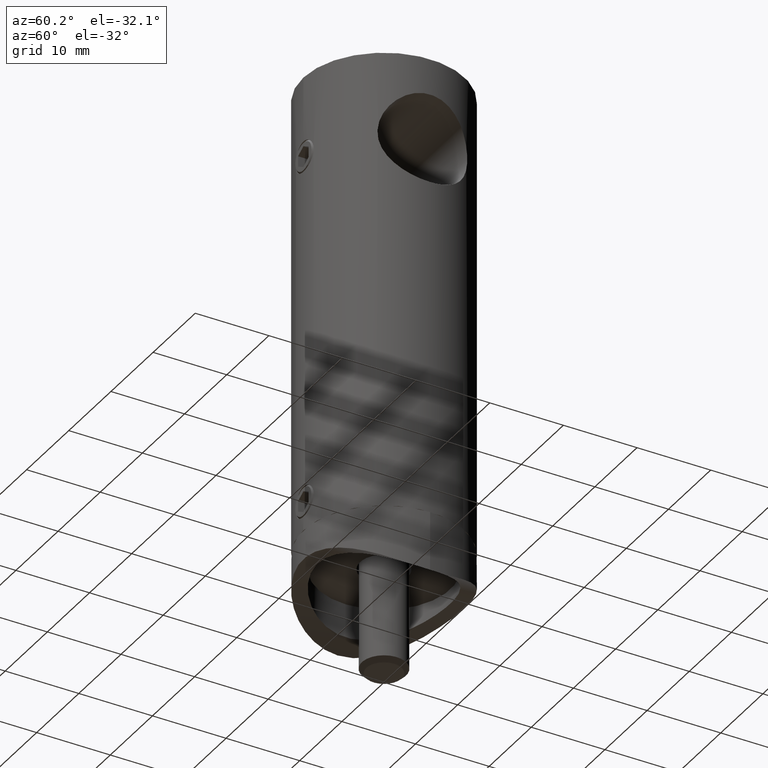
[diagram: clean part render]
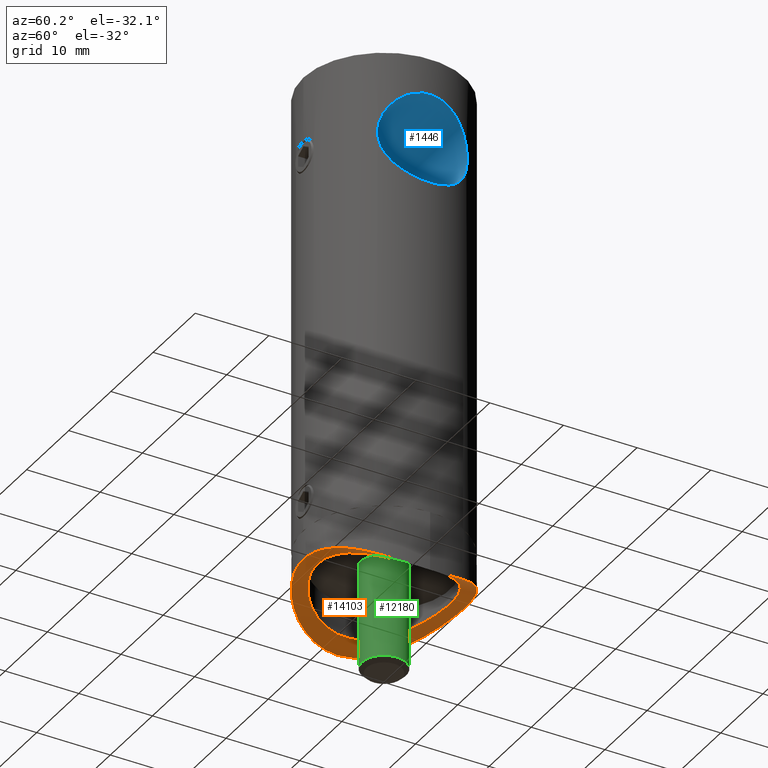
[diagram: same view with three faces highlighted in distinct colors, each labeled with its STEP entity id]
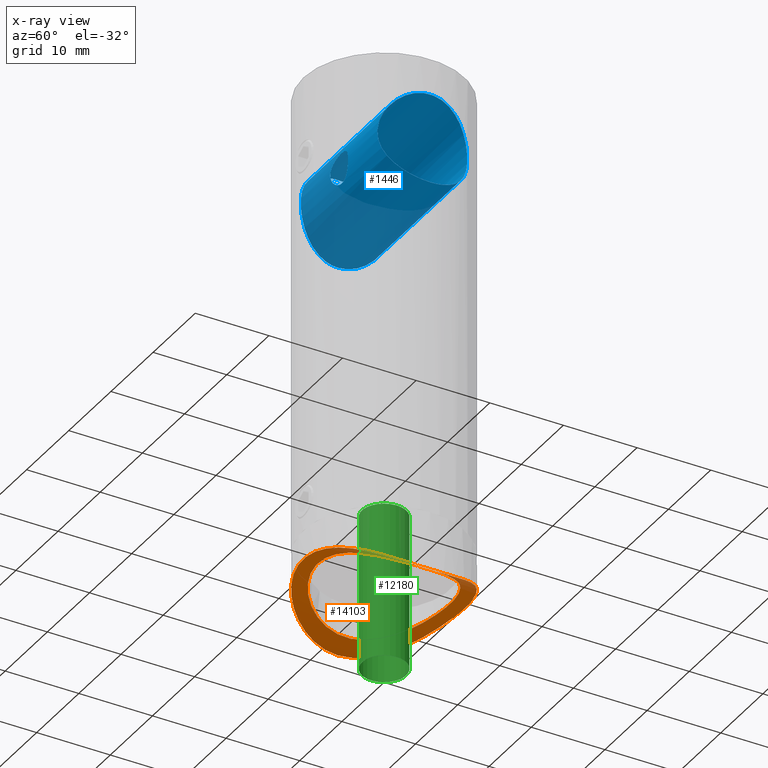
[diagram: x-ray of the same camera — body ghosted, the three highlighted faces saturated]
A machine part, auxiliary view with three faces highlighted in distinct colors.
The next image is the same camera in x-ray (body ghosted, the three faces saturated) — at least one of them is partly hidden behind the body in this view.
Their STEP definitions:

[orange] entity #14103 — the highlighted cylindrical surface (partial cylindrical patch) has radius 16.85 mm, axis along (0, 1, 0).
#8 = EDGE_LOOP ( 'NONE', ( #15482 ) ) ;
#202 = CARTESIAN_POINT ( 'NONE',  ( 6.769756498228755248, -5.937473838987434860, -7.168430931824777197 ) ) ;
#390 = CARTESIAN_POINT ( 'NONE',  ( 2.353999689058933864, 8.707274720112541999, -5.904816326611741495 ) ) ;
#477 = CARTESIAN_POINT ( 'NONE',  ( -8.680771144915242488, -2.394114882269442468, -8.157798624479791982 ) ) ;
#514 = CARTESIAN_POINT ( 'NONE',  ( 0.000000000000000000, 10.94999999999999929, -5.750000000000001776 ) ) ;
#527 = CARTESIAN_POINT ( 'NONE',  ( -5.942505359260777276, -6.765425809986877148, -6.830853520923604982 ) ) ;
#546 = CARTESIAN_POINT ( 'NONE',  ( -5.533633707270922741, 7.121846342639297056, -6.676473259026420415 ) ) ;
#598 = CARTESIAN_POINT ( 'NONE',  ( -0.6254606039707956144, 8.998160360196061802, -5.750982593789538910 ) ) ;
#637 = CARTESIAN_POINT ( 'NONE',  ( -10.95198847609121451, -0.7118171743200889523, -9.794670814496956979 ) ) ;
#792 = CARTESIAN_POINT ( 'NONE',  ( -6.730030820169274008, 8.666679607907711969, -7.139533483458301077 ) ) ;
#807 = CARTESIAN_POINT ( 'NONE',  ( 5.943528670731243579, 6.764565898683116529, -6.831228008002660168 ) ) ;
#843 = CARTESIAN_POINT ( 'NONE',  ( 4.917437567709627366, -9.810064059372233913, -6.468996850800253107 ) ) ;
#890 = CARTESIAN_POINT ( 'NONE',  ( 10.33681730554051192, -3.631079124461086938, -9.292408140327921728 ) ) ;
#938 = CARTESIAN_POINT ( 'NONE',  ( -2.959996584689042809, -10.56786301245745285, -5.996191686004162413 ) ) ;
#1001 = CARTESIAN_POINT ( 'NONE',  ( -9.809582634519843580, -4.878478684646284869, -8.898309364309685776 ) ) ;
#1053 = CARTESIAN_POINT ( 'NONE',  ( -4.645518892374168374, -9.922298315533529589, -6.399398219473660276 ) ) ;
#1481 = CARTESIAN_POINT ( 'NONE',  ( -0.5822777371568756966, -8.986183028970735620, -5.757394420722657280 ) ) ;
#1593 = CARTESIAN_POINT ( 'NONE',  ( 8.703958528421884111, -2.365092918737795369, -8.171463347902022889 ) ) ;
#1664 = CARTESIAN_POINT ( 'NONE',  ( -3.777935387974450610, 8.173918097422765427, -6.176671945371073669 ) ) ;
#1702 = CARTESIAN_POINT ( 'NONE',  ( -4.019086237761178459, -8.074481764611890711, -6.226826285162556651 ) ) ;
#1779 = CARTESIAN_POINT ( 'NONE',  ( -4.807725246531373564, 7.613883850405601450, -6.448448853962938543 ) ) ;
#1812 = CARTESIAN_POINT ( 'NONE',  ( -10.64732733778773444, 2.582474402915730938, -9.539904010321800243 ) ) ;
#1824 = CARTESIAN_POINT ( 'NONE',  ( -4.041245168714110214, 8.046985468913810280, -6.239635013371435335 ) ) ;
#1856 = CARTESIAN_POINT ( 'NONE',  ( -10.87941567533503751, -1.441869195092188471, -9.731585385921057707 ) ) ;
#1900 = AXIS2_PLACEMENT_3D ( 'NONE', #12658, #5317, #6633 ) ;
#1983 = CARTESIAN_POINT ( 'NONE',  ( 8.923624948492774323, 1.208437933319259860, -8.306899802793692444 ) ) ;
#2012 = CARTESIAN_POINT ( 'NONE',  ( -7.998322242046567609, 7.486605205302141464, -7.766753881482975963 ) ) ;
#2058 = CARTESIAN_POINT ( 'NONE',  ( 10.23529659499144273, 3.907426802424408319, -9.213783028792283503 ) ) ;
#2074 = CARTESIAN_POINT ( 'NONE',  ( 8.697453753089316564, 2.390370181689111639, -8.167513435117692566 ) ) ;
#2117 = CARTESIAN_POINT ( 'NONE',  ( 1.452266532563440515, -10.87788132074340020, -5.797143923931495024 ) ) ;
#2168 = CARTESIAN_POINT ( 'NONE',  ( 8.667749000654012548, -6.700333129162086898, -8.148060830391628429 ) ) ;
#2211 = CARTESIAN_POINT ( 'NONE',  ( 4.627639269956550727, 9.930669703494444889, -6.394267290323226050 ) ) ;
#2256 = CYLINDRICAL_SURFACE ( 'NONE', #1900, 16.85000000000000142 ) ;
#2257 = CARTESIAN_POINT ( 'NONE',  ( 10.21191707755098399, -3.967942517896859478, -9.195924782802006092 ) ) ;
#2618 = EDGE_CURVE ( 'NONE', #7478, #7478, #5126, .T. ) ;
#2771 = CARTESIAN_POINT ( 'NONE',  ( 8.072784026240094946, -4.021674449052477840, -7.807415797894997844 ) ) ;
#2791 = CARTESIAN_POINT ( 'NONE',  ( -7.805392656181967759, 4.517992317400706170, -7.662540458132594878 ) ) ;
#2829 = CARTESIAN_POINT ( 'NONE',  ( 6.170767472243694485, -6.557765720885475602, -6.919049366952237712 ) ) ;
#2852 = CARTESIAN_POINT ( 'NONE',  ( 4.012208138427203252, 8.061523673450736283, -6.232474829142356398 ) ) ;
#2889 = CARTESIAN_POINT ( 'NONE',  ( -1.476751091017767026, -8.883008077904746003, -5.812270580325193947 ) ) ;
#2988 = CARTESIAN_POINT ( 'NONE',  ( -10.85176810942076919, 1.509156963096680348, -9.709531812527981032 ) ) ;
#3041 = CARTESIAN_POINT ( 'NONE',  ( -4.934273506818555255, 9.801508284212960831, -6.474206939060009880 ) ) ;
#3056 = CARTESIAN_POINT ( 'NONE',  ( 5.260507770464916355, 7.308321160069399802, -6.590207816444086042 ) ) ;
#3108 = CARTESIAN_POINT ( 'NONE',  ( 7.625567915572271538, 4.789036509286506593, -7.573160285720820895 ) ) ;
#3190 = CARTESIAN_POINT ( 'NONE',  ( -9.798886945069327226, 4.938032297541862015, -8.887830257643761556 ) ) ;
#3205 = CARTESIAN_POINT ( 'NONE',  ( 8.999999999999998224, 0.3035544264433368000, -8.354913127678019080 ) ) ;
#3247 = CARTESIAN_POINT ( 'NONE',  ( -3.649986397884166678, -10.34898535425763377, -6.135751623057464244 ) ) ;
#3293 = CARTESIAN_POINT ( 'NONE',  ( 9.288931940382532559, 5.808586922625468496, -8.539723014647430333 ) ) ;
#3340 = CARTESIAN_POINT ( 'NONE',  ( 10.64640423190052054, -2.586355965133197987, -9.539149381438503994 ) ) ;
#3394 = CARTESIAN_POINT ( 'NONE',  ( -8.713248830424941360, -6.668291993733354239, -8.170402260772506864 ) ) ;
#3446 = CARTESIAN_POINT ( 'NONE',  ( 10.55479468711744673, -2.937828573796699150, -9.464624016628615522 ) ) ;
#3650 = CARTESIAN_POINT ( 'NONE',  ( 0.3733706210002074033, 10.94999999999999929, -5.750000000000003553 ) ) ;
#3898 = VERTEX_POINT ( 'NONE', #514 ) ;
#3927 = FACE_OUTER_BOUND ( 'NONE', #8, .T. ) ;
#3995 = CARTESIAN_POINT ( 'NONE',  ( 4.041567885135372684, -8.062832806003335406, -6.232565028840787669 ) ) ;
#4051 = CARTESIAN_POINT ( 'NONE',  ( 2.383502363788867040, -8.683790020312519786, -5.916926162043927739 ) ) ;
#4097 = CARTESIAN_POINT ( 'NONE',  ( -6.156201835296486458, -6.571452150948912774, -6.913317047625915812 ) ) ;
#4264 = CARTESIAN_POINT ( 'NONE',  ( -8.883474752777638983, 6.411466823441349661, -8.280101745709313121 ) ) ;
#4367 = CARTESIAN_POINT ( 'NONE',  ( -5.556850910864768345, 9.461821083754074380, -6.680177522850429206 ) ) ;
#4420 = CARTESIAN_POINT ( 'NONE',  ( -10.33868571406257253, 3.625698530204107151, -9.293863955035334357 ) ) ;
#4431 = CARTESIAN_POINT ( 'NONE',  ( 8.522281340456125065, 2.951555618486553456, -8.061744009398445598 ) ) ;
#4461 = CARTESIAN_POINT ( 'NONE',  ( 8.266778147592914294, 7.214835360660763364, -7.906726903854046640 ) ) ;
#4472 = CARTESIAN_POINT ( 'NONE',  ( 8.999999999999998224, 4.065758146820641628E-16, -8.354913127678019080 ) ) ;
#4511 = CARTESIAN_POINT ( 'NONE',  ( 10.85146791475362882, -1.511451789695886783, -9.709278500310860593 ) ) ;
#4567 = CARTESIAN_POINT ( 'NONE',  ( 10.87919409213141719, 1.444128645383031317, -9.731389579601888329 ) ) ;
#4614 = CARTESIAN_POINT ( 'NONE',  ( 10.94894190767665876, -0.4014474514221523793, -9.792066017781449361 ) ) ;
#4659 = CARTESIAN_POINT ( 'NONE',  ( -0.7738063085260448171, -10.92896024233015595, -5.763691165558240570 ) ) ;
#4920 = CARTESIAN_POINT ( 'NONE',  ( -8.673617379884035472E-16, 10.94999999999999929, -5.750000000000002665 ) ) ;
#4940 = EDGE_CURVE ( 'NONE', #3898, #3898, #9058, .T. ) ;
#4980 = CARTESIAN_POINT ( 'NONE',  ( 7.136054399886305077, -5.491805371263071223, -7.334363604715455232 ) ) ;
#5030 = CARTESIAN_POINT ( 'NONE',  ( 0.6241749436309375065, -8.998437823462580809, -5.750834395043401770 ) ) ;
#5086 = CARTESIAN_POINT ( 'NONE',  ( 5.276021894448009064, -7.297147494087153241, -6.595311827422430717 ) ) ;
#5126 = B_SPLINE_CURVE_WITH_KNOTS ( 'NONE', 3,
 ( #13549, #11079, #7464, #1593, #5198, #2771, #5144, #7415, #4980, #202, #9823, #2829, #8681, #6412, #5086, #7518, #3995, #6351, #11242, #4051, #11022, #12269, #5030, #14683, #1481, #9869, #2889, #13710, #14951, #11301, #13768, #1702, #5311, #7736, #5254, #527, #4097, #6521, #12491, #6474, #12542, #14892, #7683, #477, #8899, #10091, #7602, #6492, #8861, #12561, #12456, #7818, #13788, #12669, #2791, #11262, #6539, #7759, #546, #1779, #10159, #1824, #1664, #11381, #13678, #12612, #598, #6432, #5424, #11425, #9004, #390, #10058, #11207, #2852, #13987, #7971, #3056, #9062, #807, #11485, #8017, #12727, #3108, #10410, #6791, #10309, #4431, #2074, #9213, #1983, #10362, #3205, #4472 ),
 .UNSPECIFIED., .T., .F.,
 ( 4, 2, 2, 2, 2, 2, 2, 2, 2, 2, 2, 2, 2, 2, 2, 2, 2, 2, 2, 2, 2, 2, 2, 2, 2, 2, 2, 2, 2, 2, 2, 2, 2, 2, 2, 2, 2, 2, 2, 2, 2, 2, 2, 2, 2, 2, 4 ),
 ( 0.000000000000000000, 0.001791929199387567269, 0.003583858398775133670, 0.005375787598162699854, 0.006271752197856484030, 0.007167716797550267339, 0.008063681397244051516, 0.008959645996937833090, 0.01075157519632539971, 0.01164753979601918128, 0.01254350439571296459, 0.01433543359510052774, 0.01523139819479431105, 0.01612736279448809609, 0.01702332739418187940, 0.01791929199387566271, 0.01971122119326322586, 0.02060718579295700570, 0.02150315039265078554, 0.02329507959203834522, 0.02508700879142590143, 0.02598297339111967780, 0.02687893799081345417, 0.02867086719020101038, 0.03046279638958856312, 0.03135876098928234296, 0.03225472558897612280, 0.03404665478836367554, 0.03583858398775122828, 0.03763051318713878796, 0.03852647778683256086, 0.03942244238652634070, 0.04121437158591389344, 0.04300630078530144618, 0.04390226538499522602, 0.04479822998468899892, 0.04659015918407655166, 0.04748612378377033150, 0.04838208838346410440, 0.04927805298315788424, 0.05017401758285166408, 0.05196594678223921682, 0.05286191138193299666, 0.05375787598162676956, 0.05554980518101432924, 0.05644576978070810214, 0.05734173438040188198 ),
 .UNSPECIFIED. ) ;
#5144 = CARTESIAN_POINT ( 'NONE',  ( 7.797088794533238776, -4.532650516029333332, -7.658139167098894085 ) ) ;
#5198 = CARTESIAN_POINT ( 'NONE',  ( 8.526297857816199866, -2.940399998006672622, -8.064091560879914411 ) ) ;
#5254 = CARTESIAN_POINT ( 'NONE',  ( -5.493936980478560272, -7.134494571433201315, -6.669023662124764940 ) ) ;
#5311 = CARTESIAN_POINT ( 'NONE',  ( -4.532702480700876002, -7.797067203172923122, -6.363189922402299636 ) ) ;
#5317 = DIRECTION ( 'NONE',  ( -0.000000000000000000, 1.000000000000000000, -0.000000000000000000 ) ) ;
#5411 = CARTESIAN_POINT ( 'NONE',  ( -8.674436666472141511, 6.691646975888223992, -8.152084883947939176 ) ) ;
#5424 = CARTESIAN_POINT ( 'NONE',  ( 0.5722147814154153744, 8.986879830245939615, -5.757022464014128538 ) ) ;
#5467 = CARTESIAN_POINT ( 'NONE',  ( -7.264775896212412931, 8.222237890532422711, -7.386554381788460688 ) ) ;
#5667 = CARTESIAN_POINT ( 'NONE',  ( -9.474494951377948837, -5.501037280035036225, -8.664499178143945102 ) ) ;
#5721 = CARTESIAN_POINT ( 'NONE',  ( 8.223414625171180603, -7.238769832133513660, -7.890687629840745565 ) ) ;
#5764 = CARTESIAN_POINT ( 'NONE',  ( 10.57043144332096674, 2.880786553959169272, -9.477236992533965676 ) ) ;
#5815 = CARTESIAN_POINT ( 'NONE',  ( 10.79473961177904329, -1.873167627655815792, -9.661478497784386832 ) ) ;
#6351 = CARTESIAN_POINT ( 'NONE',  ( 3.231651342975603747, -8.404898307200046048, -6.060498670644121511 ) ) ;
#6412 = CARTESIAN_POINT ( 'NONE',  ( 5.511031421548649334, -7.121273697717673379, -6.674942018971740332 ) ) ;
#6432 = CARTESIAN_POINT ( 'NONE',  ( 0.2721457111335696122, 9.000858815726555662, -5.749541286885177627 ) ) ;
#6474 = CARTESIAN_POINT ( 'NONE',  ( -7.787708627573256770, -4.548909255757392245, -7.653203134994748247 ) ) ;
#6492 = CARTESIAN_POINT ( 'NONE',  ( -9.002117627807260547, 0.5654481320849293891, -8.356251025532282384 ) ) ;
#6521 = CARTESIAN_POINT ( 'NONE',  ( -6.767025709518395438, -5.961424383751998235, -7.162278814942807159 ) ) ;
#6539 = CARTESIAN_POINT ( 'NONE',  ( -6.789418910662318396, 5.935974566348909853, -7.172137807243879948 ) ) ;
#6595 = ORIENTED_EDGE ( 'NONE', *, *, #2618, .F. ) ;
#6633 = DIRECTION ( 'NONE',  ( 0.000000000000000000, 0.000000000000000000, 1.000000000000000000 ) ) ;
#6791 = CARTESIAN_POINT ( 'NONE',  ( 8.056514729353525084, 4.022235242260659760, -7.800000922084966426 ) ) ;
#6827 = CARTESIAN_POINT ( 'NONE',  ( -5.891917008406099221, -9.236332190205612136, -6.810640064963539686 ) ) ;
#6869 = CARTESIAN_POINT ( 'NONE',  ( 1.488582956514417077, 10.85474548004059869, -5.811770206739696576 ) ) ;
#6919 = CARTESIAN_POINT ( 'NONE',  ( 2.938192695712195768, 10.57404694462563732, -5.992248146107759688 ) ) ;
#6974 = CARTESIAN_POINT ( 'NONE',  ( -1.882258922895466702, -10.79325268188601328, -5.851537863896203895 ) ) ;
#7030 = CARTESIAN_POINT ( 'NONE',  ( 10.66134374622541436, 2.524523209338929597, -9.551355469383734587 ) ) ;
#7415 = CARTESIAN_POINT ( 'NONE',  ( 7.309928328518850549, -5.258310225204644972, -7.417105923545980417 ) ) ;
#7464 = CARTESIAN_POINT ( 'NONE',  ( 8.939234714585197139, -1.201100035928156284, -8.316035329679033694 ) ) ;
#7478 = VERTEX_POINT ( 'NONE', #13862 ) ;
#7518 = CARTESIAN_POINT ( 'NONE',  ( 4.552025852731567568, -7.785764892461914499, -6.368630286860568646 ) ) ;
#7602 = CARTESIAN_POINT ( 'NONE',  ( -8.997763151772488754, -0.6309608859205875220, -8.353499907095295995 ) ) ;
#7683 = CARTESIAN_POINT ( 'NONE',  ( -8.504749320993937545, -2.959191228520102968, -8.053446895277073025 ) ) ;
#7736 = CARTESIAN_POINT ( 'NONE',  ( -5.258496553154992093, -7.309796590042277664, -6.589536630094383618 ) ) ;
#7759 = CARTESIAN_POINT ( 'NONE',  ( -5.977026886871080080, 6.753306804108664352, -6.839597385321875223 ) ) ;
#7818 = CARTESIAN_POINT ( 'NONE',  ( -8.523009683764771083, 2.906197388975949814, -8.064151766958435275 ) ) ;
#7851 = CARTESIAN_POINT ( 'NONE',  ( -10.94894428843266887, 0.4008463375416358998, -9.792068053304609165 ) ) ;
#7908 = CARTESIAN_POINT ( 'NONE',  ( -10.79521210394975306, 1.870333956932258568, -9.661874852655529367 ) ) ;
#7971 = CARTESIAN_POINT ( 'NONE',  ( 4.777935619119118016, 7.632550779483405101, -6.439625035806792575 ) ) ;
#8005 = CARTESIAN_POINT ( 'NONE',  ( -0.7467412420004226892, 10.94999999999999929, -5.750000000000000000 ) ) ;
#8017 = CARTESIAN_POINT ( 'NONE',  ( 6.773231474935248464, 5.954642221051534179, -7.164947323043685756 ) ) ;
#8048 = CARTESIAN_POINT ( 'NONE',  ( -8.274706805201416771, -7.205644945949356561, -7.911238726087584716 ) ) ;
#8099 = CARTESIAN_POINT ( 'NONE',  ( -10.23745742856988628, -3.901712882491353174, -9.215441720334098363 ) ) ;
#8157 = CARTESIAN_POINT ( 'NONE',  ( 5.541342136532975360, -9.471014841782384508, -6.674707243084673891 ) ) ;
#8205 = CARTESIAN_POINT ( 'NONE',  ( 7.279761530226322996, 8.209661520793499534, -7.393522193404444387 ) ) ;
#8253 = CARTESIAN_POINT ( 'NONE',  ( -6.756981862805640837, -8.644869550942319236, -7.151699482660421658 ) ) ;
#8681 = CARTESIAN_POINT ( 'NONE',  ( 5.957807994985246047, -6.751927895200893204, -6.836641762514618748 ) ) ;
#8861 = CARTESIAN_POINT ( 'NONE',  ( -8.942784940732847687, 1.175460298121187019, -8.318270068185633193 ) ) ;
#8899 = CARTESIAN_POINT ( 'NONE',  ( -8.756187516724763142, -2.102059484055850191, -8.203588714871738574 ) ) ;
#9004 = CARTESIAN_POINT ( 'NONE',  ( 1.474042599237737061, 8.883506363623126845, -5.812007519608032524 ) ) ;
#9044 = CARTESIAN_POINT ( 'NONE',  ( -10.55599610924947918, 2.933437960413626033, -9.465593851156450356 ) ) ;
#9058 = B_SPLINE_CURVE_WITH_KNOTS ( 'NONE', 3,
 ( #10345, #8005, #10250, #12652, #11572, #3041, #4367, #792, #5467, #2012, #10395, #5411, #4264, #13878, #3190, #11619, #4420, #9044, #1812, #7908, #2988, #11470, #7851, #637, #1856, #12712, #13921, #15300, #8099, #15448, #1001, #5667, #9301, #3394, #8048, #12917, #8253, #6827, #11737, #10545, #1053, #3247, #938, #6974, #15245, #4659, #14268, #13072, #2117, #15349, #13110, #843, #8157, #9401, #9452, #9347, #5721, #2168, #9251, #10490, #13018, #2257, #890, #3446, #3340, #5815, #4511, #11837, #4614, #14072, #4567, #7030, #5764, #11782, #2058, #14227, #11677, #10645, #3293, #15397, #4461, #8205, #10441, #12968, #11894, #14122, #2211, #14171, #6919, #10597, #6869, #14508, #3650, #4920 ),
 .UNSPECIFIED., .T., .F.,
 ( 4, 2, 2, 2, 2, 2, 2, 2, 2, 2, 2, 2, 2, 2, 2, 2, 2, 2, 2, 2, 2, 2, 2, 2, 2, 2, 2, 2, 2, 2, 2, 2, 2, 2, 2, 2, 2, 2, 2, 2, 2, 2, 2, 2, 2, 2, 4 ),
 ( 0.000000000000000000, 0.002204674916900577816, 0.004409349833801155631, 0.006614024750701735615, 0.008818699667602314732, 0.009921037126052606459, 0.01102337458450289645, 0.01322804950140347297, 0.01433038695985375775, 0.01543272441830404601, 0.01653506187675433253, 0.01763739933520461906, 0.01984207425210519557, 0.02094441171055547862, 0.02204674916900576515, 0.02314908662745604820, 0.02425142408590633472, 0.02645609900280690777, 0.02866077391970747734, 0.02976311137815776733, 0.03086544883660805733, 0.03307012375350862343, 0.03417246121195890995, 0.03527479867040919648, 0.03747947358730976952, 0.03968414850421033563, 0.04188882342111090173, 0.04409349833801147478, 0.04519583579646176130, 0.04629817325491203395, 0.04850284817181260699, 0.04960518563026288658, 0.05070752308871317310, 0.05180986054716345268, 0.05291219800561372533, 0.05511687292251429837, 0.05621921038096458489, 0.05732154783941486448, 0.05842388529786515100, 0.05952622275631542365, 0.06173089767321599669, 0.06393557259011656280, 0.06503791004856684932, 0.06614024750701713584, 0.06834492242391770889, 0.06944725988236800929, 0.07054959734081828193 ),
 .UNSPECIFIED. ) ;
#9062 = CARTESIAN_POINT ( 'NONE',  ( 5.493574878806451345, 7.134810432546720982, -6.668887727269298793 ) ) ;
#9213 = CARTESIAN_POINT ( 'NONE',  ( 8.877634590881918086, 1.509137806476186672, -8.278161024891542041 ) ) ;
#9251 = CARTESIAN_POINT ( 'NONE',  ( 8.877433961888492320, -6.419858381013207271, -8.276346123866254345 ) ) ;
#9301 = CARTESIAN_POINT ( 'NONE',  ( -9.293821020510860009, -5.800730269746900980, -8.542963866343818324 ) ) ;
#9347 = CARTESIAN_POINT ( 'NONE',  ( 7.989808668690983495, -7.495715265412895789, -7.762153942458378530 ) ) ;
#9401 = CARTESIAN_POINT ( 'NONE',  ( 6.717999677049601992, -8.676120973484600540, -7.134234503047154341 ) ) ;
#9452 = CARTESIAN_POINT ( 'NONE',  ( 7.254245891667538082, -8.231620505888173511, -7.381482026767613114 ) ) ;
#9823 = CARTESIAN_POINT ( 'NONE',  ( 6.576742401764640533, -6.150538336385892535, -7.084941400903030484 ) ) ;
#9869 = CARTESIAN_POINT ( 'NONE',  ( -1.181156269983225204, -8.927228162158147740, -5.788775180607092175 ) ) ;
#10058 = CARTESIAN_POINT ( 'NONE',  ( 2.921239271995005993, 8.533463070077417001, -5.995685546142789590 ) ) ;
#10091 = CARTESIAN_POINT ( 'NONE',  ( -8.936562260900338117, -1.223008817333223419, -8.314333553120043518 ) ) ;
#10159 = CARTESIAN_POINT ( 'NONE',  ( -4.555459080950830852, 7.767459701366194125, -6.375296687731400347 ) ) ;
#10250 = CARTESIAN_POINT ( 'NONE',  ( -1.477209388873391482, 10.87444454831140561, -5.799375572329035222 ) ) ;
#10309 = CARTESIAN_POINT ( 'NONE',  ( 8.182656430668172831, 3.758905916802296243, -7.869638485047897980 ) ) ;
#10345 = CARTESIAN_POINT ( 'NONE',  ( -8.673617379884035472E-16, 10.94999999999999929, -5.750000000000002665 ) ) ;
#10362 = CARTESIAN_POINT ( 'NONE',  ( 8.984605093228685391, 0.6068572968801695389, -8.345152866920285462 ) ) ;
#10395 = CARTESIAN_POINT ( 'NONE',  ( -8.231296336865392860, 7.229782247430190267, -7.895107504779629970 ) ) ;
#10410 = CARTESIAN_POINT ( 'NONE',  ( 7.777914304797517886, 4.537604543765378473, -7.651707409948040883 ) ) ;
#10441 = CARTESIAN_POINT ( 'NONE',  ( 6.745065774781788370, 8.654267804473475323, -7.146432902309400426 ) ) ;
#10490 = CARTESIAN_POINT ( 'NONE',  ( 9.461595865578106057, -5.555570645424507070, -8.649577779853206749 ) ) ;
#10545 = CARTESIAN_POINT ( 'NONE',  ( -4.970478836501090569, -9.763346979481307031, -6.496455371433944137 ) ) ;
#10597 = CARTESIAN_POINT ( 'NONE',  ( 1.857826616693877275, 10.79750973782263301, -5.848792439000015442 ) ) ;
#10645 = CARTESIAN_POINT ( 'NONE',  ( 9.470109693118349270, 5.508614592727200332, -8.661510961139544662 ) ) ;
#11022 = CARTESIAN_POINT ( 'NONE',  ( 2.092200281080138335, -8.758507331697291676, -5.877817630384451597 ) ) ;
#11072 = FACE_BOUND ( 'NONE', #14720, .T. ) ;
#11079 = CARTESIAN_POINT ( 'NONE',  ( 8.999999999999996447, -0.6071088528866767087, -8.354913127678017304 ) ) ;
#11207 = CARTESIAN_POINT ( 'NONE',  ( 3.744279541798007482, 8.189553005263974228, -6.168887132802682416 ) ) ;
#11242 = CARTESIAN_POINT ( 'NONE',  ( 2.954257939733777594, -8.506565268108296607, -6.008484209500283946 ) ) ;
#11262 = CARTESIAN_POINT ( 'NONE',  ( -7.160907752727973197, 5.482500273980079442, -7.343091655285289399 ) ) ;
#11301 = CARTESIAN_POINT ( 'NONE',  ( -2.917833501594558676, -8.519084111116166369, -6.002056127726985935 ) ) ;
#11381 = CARTESIAN_POINT ( 'NONE',  ( -2.969016380059754212, 8.516329794651971596, -6.004475227410789984 ) ) ;
#11425 = CARTESIAN_POINT ( 'NONE',  ( 1.174138839021475089, 8.928204569007862190, -5.788256484811090452 ) ) ;
#11470 = CARTESIAN_POINT ( 'NONE',  ( -10.92870214897537373, 0.7758190374603018968, -9.774692575542266226 ) ) ;
#11485 = CARTESIAN_POINT ( 'NONE',  ( 6.159890061767187674, 6.568056148921655790, -6.914751887033814270 ) ) ;
#11572 = CARTESIAN_POINT ( 'NONE',  ( -3.613987059323615192, 10.36126040694993478, -6.127982685190221268 ) ) ;
#11619 = CARTESIAN_POINT ( 'NONE',  ( -10.21412637448893079, 3.962207022534765422, -9.197614260612791526 ) ) ;
#11677 = CARTESIAN_POINT ( 'NONE',  ( 9.806131957240317831, 4.885446588398185241, -8.895831644228916701 ) ) ;
#11737 = CARTESIAN_POINT ( 'NONE',  ( -5.592625241924395141, -9.420782717441381848, -6.701812921854455318 ) ) ;
#11782 = CARTESIAN_POINT ( 'NONE',  ( 10.35761880147759229, 3.571090145977619201, -9.308624502657911748 ) ) ;
#11837 = CARTESIAN_POINT ( 'NONE',  ( 10.92863707406065465, -0.7770032953400665132, -9.774636520123790362 ) ) ;
#11894 = CARTESIAN_POINT ( 'NONE',  ( 5.577491591896114542, 9.429776438195814237, -6.696480188077203799 ) ) ;
#12269 = CARTESIAN_POINT ( 'NONE',  ( 1.216522046379911126, -8.937286215225499930, -5.783718752768100657 ) ) ;
#12456 = CARTESIAN_POINT ( 'NONE',  ( -8.695601738897536848, 2.339698213813251382, -8.166736740360901692 ) ) ;
#12491 = CARTESIAN_POINT ( 'NONE',  ( -7.134608504950917585, -5.517095482785874694, -7.330667870768158068 ) ) ;
#12542 = CARTESIAN_POINT ( 'NONE',  ( -8.063690013734737150, -4.039346743676786033, -7.802458506225568691 ) ) ;
#12561 = CARTESIAN_POINT ( 'NONE',  ( -8.767997700604155398, 2.052070582208249228, -8.210788958126640225 ) ) ;
#12612 = CARTESIAN_POINT ( 'NONE',  ( -1.220418569986014168, 8.937290988820056015, -5.783728545056426640 ) ) ;
#12652 = CARTESIAN_POINT ( 'NONE',  ( -2.908031627076410164, 10.58201511380506687, -5.987159159428712130 ) ) ;
#12658 = CARTESIAN_POINT ( 'NONE',  ( 0.000000000000000000, -10.94999999999999929, -22.60000000000000142 ) ) ;
#12669 = CARTESIAN_POINT ( 'NONE',  ( -8.081130425237390114, 4.005697824238162674, -7.811957311337415000 ) ) ;
#12712 = CARTESIAN_POINT ( 'NONE',  ( -10.66224500808580800, -2.520629770646548362, -9.552093983451188208 ) ) ;
#12727 = CARTESIAN_POINT ( 'NONE',  ( 7.139208689779466432, 5.510746426112778096, -7.332878771086202896 ) ) ;
#12917 = CARTESIAN_POINT ( 'NONE',  ( -7.290265288139783806, -8.200251449051814134, -7.398601626739076842 ) ) ;
#12968 = CARTESIAN_POINT ( 'NONE',  ( 5.877620805515440416, 9.245459131432669508, -6.805298016302697484 ) ) ;
#13018 = CARTESIAN_POINT ( 'NONE',  ( 9.795493327668371109, -4.944904788168211773, -8.885382186297720253 ) ) ;
#13072 = CARTESIAN_POINT ( 'NONE',  ( 0.7197045531815232655, -10.95187688228041623, -5.748780307314288684 ) ) ;
#13110 = CARTESIAN_POINT ( 'NONE',  ( 3.593644627500637956, -10.36842646559952286, -6.123465985740515372 ) ) ;
#13549 = CARTESIAN_POINT ( 'NONE',  ( 8.999999999999998224, 4.065758146820641628E-16, -8.354913127678019080 ) ) ;
#13678 = CARTESIAN_POINT ( 'NONE',  ( -2.403321873601205638, 8.694172512475292436, -5.911667216160062743 ) ) ;
#13710 = CARTESIAN_POINT ( 'NONE',  ( -2.060544425541010138, -8.766001538176631414, -5.873888391995914837 ) ) ;
#13768 = CARTESIAN_POINT ( 'NONE',  ( -3.200048630397410054, -8.417081813282706548, -6.054304738579498135 ) ) ;
#13788 = CARTESIAN_POINT ( 'NONE',  ( -8.422361920626256548, 3.186124711963695955, -8.005363534646166457 ) ) ;
#13862 = CARTESIAN_POINT ( 'NONE',  ( 8.999999999999998224, 0.000000000000000000, -8.354913127678020857 ) ) ;
#13878 = CARTESIAN_POINT ( 'NONE',  ( -9.465935197402062684, 5.548035047103799577, -8.652562614426770438 ) ) ;
#13921 = CARTESIAN_POINT ( 'NONE',  ( -10.57160307786288378, -2.876417745079140609, -9.478184856008658343 ) ) ;
#13987 = CARTESIAN_POINT ( 'NONE',  ( 4.528431843985457839, 7.783269436300311206, -6.367717369417863260 ) ) ;
#14072 = CARTESIAN_POINT ( 'NONE',  ( 10.95199305943802948, 0.7129543055115454830, -9.794674733213167173 ) ) ;
#14103 = ADVANCED_FACE ( 'NONE', ( #3927, #11072 ), #2256, .F. ) ;
#14122 = CARTESIAN_POINT ( 'NONE',  ( 4.953560312386002806, 9.771966862591126457, -6.491226145437169137 ) ) ;
#14171 = CARTESIAN_POINT ( 'NONE',  ( 3.629804737391232994, 10.35615765906433872, -6.131232922597432911 ) ) ;
#14227 = CARTESIAN_POINT ( 'NONE',  ( 9.959826338002807589, 4.564114363222476101, -9.007577092198808089 ) ) ;
#14268 = CARTESIAN_POINT ( 'NONE',  ( -0.4018684571910203229, -10.94900781875871942, -5.750644769402242673 ) ) ;
#14508 = CARTESIAN_POINT ( 'NONE',  ( 0.7471485046060175605, 10.93083472416227941, -5.762473224318154230 ) ) ;
#14683 = CARTESIAN_POINT ( 'NONE',  ( -0.2776672623730803702, -9.000737208537469058, -5.749606239696248622 ) ) ;
#14720 = EDGE_LOOP ( 'NONE', ( #6595 ) ) ;
#14892 = CARTESIAN_POINT ( 'NONE',  ( -8.403798506831426707, -3.234350838250581450, -7.994671233382894648 ) ) ;
#14951 = CARTESIAN_POINT ( 'NONE',  ( -2.348742300159042173, -8.693213217374982094, -5.912013220954530190 ) ) ;
#15245 = CARTESIAN_POINT ( 'NONE',  ( -1.513907376176437669, -10.85122263332139347, -5.814048855421538597 ) ) ;
#15300 = CARTESIAN_POINT ( 'NONE',  ( -10.35941957191862350, -3.565809419056972018, -9.310031962344309520 ) ) ;
#15349 = CARTESIAN_POINT ( 'NONE',  ( 2.885990040728032113, -10.58812738847623969, -5.983258084705814106 ) ) ;
#15397 = CARTESIAN_POINT ( 'NONE',  ( 8.706728191599379940, 6.676910866607889794, -8.166429194783976442 ) ) ;
#15448 = CARTESIAN_POINT ( 'NONE',  ( -9.962800948346083985, -4.557575592660432662, -9.009763349846030778 ) ) ;
#15482 = ORIENTED_EDGE ( 'NONE', *, *, #4940, .F. ) ;

[blue] entity #1446 — the highlighted cylindrical surface (bore or boss wall) has radius 6.1 mm, axis along (1, 0, 0).
#66 = CARTESIAN_POINT ( 'NONE',  ( -10.94999999999999751, 0.4121271812347865882, 13.89999999999999680 ) ) ;
#112 = CARTESIAN_POINT ( 'NONE',  ( 9.093159490502698006, 6.100569724278071426, 19.59579318104650980 ) ) ;
#168 = CARTESIAN_POINT ( 'NONE',  ( -10.29763792113849519, 3.739050856306787463, 15.16406318220803051 ) ) ;
#325 = CARTESIAN_POINT ( 'NONE',  ( -10.86057621934825868, -1.410670984356244828, 14.06192453670200493 ) ) ;
#391 = CARTESIAN_POINT ( 'NONE',  ( -10.18074281571860240, -4.042908466687186397, 15.41551523344308450 ) ) ;
#448 = CARTESIAN_POINT ( 'NONE',  ( -10.73147197088350957, -2.184879164022425435, 14.30119630879068282 ) ) ;
#610 = CARTESIAN_POINT ( 'NONE',  ( -1.992042382825121249, -6.063472000028594877, 19.32106783480151080 ) ) ;
#623 = CARTESIAN_POINT ( 'NONE',  ( 0.000000000000000000, -5.727128425310541004, 22.09999999999999432 ) ) ;
#709 = CARTESIAN_POINT ( 'NONE',  ( -0.6809394115330155151, -5.766099166669313547, 21.99128326647104714 ) ) ;
#865 = CARTESIAN_POINT ( 'NONE',  ( -0.6807635874338645587, -5.766090314719155785, 18.00869953836180315 ) ) ;
#918 = CARTESIAN_POINT ( 'NONE',  ( 9.768452395021000711, 4.949254153054865490, 23.57118669077423334 ) ) ;
#969 = CARTESIAN_POINT ( 'NONE',  ( -1.056091728403600660, -5.822627757755659772, 18.17975366945843163 ) ) ;
#978 = CARTESIAN_POINT ( 'NONE',  ( 10.92682766583283360, -0.8158183671098866441, 13.94132388569383352 ) ) ;
#1027 = CARTESIAN_POINT ( 'NONE',  ( 1.281236275656479906, -5.867642891633138902, 21.66944067478866387 ) ) ;
#1037 = CARTESIAN_POINT ( 'NONE',  ( 9.826326586135246899, -4.833712876441484951, 16.27394296238261617 ) ) ;
#1074 = CARTESIAN_POINT ( 'NONE',  ( 0.5468045535745765795, -5.751601860987043402, 22.03221476044510752 ) ) ;
#1078 = CARTESIAN_POINT ( 'NONE',  ( 9.944810887569845548, -4.584998447081173545, 15.97184031352808908 ) ) ;
#1130 = CARTESIAN_POINT ( 'NONE',  ( 10.76670801674820233, -2.004736178113188494, 25.76472609174774320 ) ) ;
#1184 = CARTESIAN_POINT ( 'NONE',  ( 10.92670914720671149, 0.8172887995439637177, 13.94153729450738233 ) ) ;
#1340 = CARTESIAN_POINT ( 'NONE',  ( -10.83868741255074930, 1.607475542562763149, 14.10176821019718574 ) ) ;
#1399 = CARTESIAN_POINT ( 'NONE',  ( 10.18074281571859174, 4.042908466687191726, 15.41551523344308805 ) ) ;
#1446 = ADVANCED_FACE ( 'NONE', ( #4456, #9162, #9705 ), #7872, .F. ) ;
#1449 = CARTESIAN_POINT ( 'NONE',  ( -9.490515665216376462, -5.464875276261936143, 22.73897214734641281 ) ) ;
#1500 = CARTESIAN_POINT ( 'NONE',  ( -9.093931798807561862, -6.099418408269275282, 20.42122344917229171 ) ) ;
#1555 = CARTESIAN_POINT ( 'NONE',  ( -9.827761506231270872, -4.830806165742449920, 23.72984559646042158 ) ) ;
#1584 = DIRECTION ( 'NONE',  ( 0.000000000000000000, 0.000000000000000000, -1.000000000000000000 ) ) ;
#1616 = CARTESIAN_POINT ( 'NONE',  ( -10.29628097381320728, 3.742490332636333239, 24.83299621117545541 ) ) ;
#1665 = CARTESIAN_POINT ( 'NONE',  ( -10.94999999999999396, 1.057097118173366823E-15, 13.89999999999999325 ) ) ;
#1770 = EDGE_LOOP ( 'NONE', ( #14873 ) ) ;
#1832 = CARTESIAN_POINT ( 'NONE',  ( -1.282235101703851576, -5.867854272617278433, 21.66871264924787965 ) ) ;
#1885 = CARTESIAN_POINT ( 'NONE',  ( -0.1399003517322289780, -5.727128425310540116, 22.09999999999998721 ) ) ;
#1930 = EDGE_LOOP ( 'NONE', ( #2316 ) ) ;
#1990 = CARTESIAN_POINT ( 'NONE',  ( -9.486769009248163798E-17, -5.727128425310541004, 22.09999999999999076 ) ) ;
#2032 = B_SPLINE_CURVE_WITH_KNOTS ( 'NONE', 3,
 ( #15478, #11923, #978, #10523, #14293, #9379, #15429, #8230, #3373, #4691, #1078, #1037, #9433, #2239, #13051, #10627, #4493, #3428, #13138, #6896, #9328, #11873, #12994, #8282, #2192, #4639, #9487, #15525, #15332, #8334, #5850, #10675, #1130, #3473, #10578, #11813, #5901, #14345, #5745, #9526, #2337, #4598, #14209, #10732, #2150, #12950, #14152, #8133, #918, #3320, #11767, #4545, #6953, #15376, #12138, #112, #6050, #15567, #3736, #10829, #9680, #12018, #2576, #1399, #9628, #12079, #4793, #11973, #3681, #4839, #14487, #1184, #7165, #14547 ),
 .UNSPECIFIED., .T., .F.,
 ( 4, 2, 2, 2, 2, 2, 2, 2, 2, 2, 2, 2, 2, 2, 2, 2, 2, 2, 2, 2, 2, 2, 2, 2, 2, 2, 2, 2, 2, 2, 2, 2, 2, 2, 2, 2, 4 ),
 ( 0.000000000000000000, 0.001217233959529843024, 0.002434467919059686049, 0.003651701878589529507, 0.004868935838119372098, 0.005477552817884296862, 0.006086169797649221627, 0.007303403757179064218, 0.008520637716708906809, 0.009737871676238745930, 0.01095510563576858679, 0.01217233959529842764, 0.01338957355482826850, 0.01460680751435810935, 0.01582404147388795021, 0.01704127543341779280, 0.01764989241318271063, 0.01825850939294763192, 0.01947574335247747104, 0.02069297731200731710, 0.02191021127153715622, 0.02312744523106700228, 0.02434467919059684141, 0.02495329617036175923, 0.02556191315012668053, 0.02677914710965650230, 0.02799638106918633101, 0.02921361502871615279, 0.03043084898824598150, 0.03164808294777581021, 0.03286531690730563199, 0.03408255086683546070, 0.03529978482636528248, 0.03651701878589511119, 0.03712563576566002554, 0.03773425274542493296, 0.03895148670495476168 ),
 .UNSPECIFIED. ) ;
#2034 = CARTESIAN_POINT ( 'NONE',  ( -1.054816158981410901, -5.822389890575832005, 21.82101390235030536 ) ) ;
#2086 = CARTESIAN_POINT ( 'NONE',  ( 1.055727324085722341, -5.822563031844999237, 18.17955072669256111 ) ) ;
#2150 = CARTESIAN_POINT ( 'NONE',  ( 10.18323341906132029, 4.036605263572401903, 24.58995614860064904 ) ) ;
#2188 = CARTESIAN_POINT ( 'NONE',  ( 0.1369343535420947111, -5.727108261277593648, 17.89994500856344573 ) ) ;
#2192 = CARTESIAN_POINT ( 'NONE',  ( 9.593327564350756731, -5.285063471602612140, 23.07138322325212698 ) ) ;
#2235 = CARTESIAN_POINT ( 'NONE',  ( 0.6795701718145995551, -5.765940518388003255, 18.00826245473212950 ) ) ;
#2239 = CARTESIAN_POINT ( 'NONE',  ( 9.595974733628985121, -5.280216740019255006, 16.92054022387123169 ) ) ;
#2316 = ORIENTED_EDGE ( 'NONE', *, *, #5298, .F. ) ;
#2337 = CARTESIAN_POINT ( 'NONE',  ( 10.77455119342263679, 1.988554168701583968, 25.78063558606951489 ) ) ;
#2379 = CARTESIAN_POINT ( 'NONE',  ( -10.92682766583283360, 0.8158183671098853118, 13.94132388569383352 ) ) ;
#2537 = CARTESIAN_POINT ( 'NONE',  ( -10.77254898319129417, 1.999174540163153990, 14.22309129948361317 ) ) ;
#2576 = CARTESIAN_POINT ( 'NONE',  ( 9.943921655449349473, 4.594676839572319871, 15.96867835757290521 ) ) ;
#2633 = CARTESIAN_POINT ( 'NONE',  ( -10.60884419437644155, -2.738188333989597822, 14.53441983528883341 ) ) ;
#2689 = CARTESIAN_POINT ( 'NONE',  ( -10.92571837505590260, 0.8301113191702993443, 26.05668212774836690 ) ) ;
#2740 = CARTESIAN_POINT ( 'NONE',  ( -9.824223078992860181, -4.842382934615432788, 16.26948384287063121 ) ) ;
#2792 = CARTESIAN_POINT ( 'NONE',  ( -10.76670801674819344, 2.004736178113185829, 25.76472609174773609 ) ) ;
#2810 = EDGE_LOOP ( 'NONE', ( #10057 ) ) ;
#2853 = CARTESIAN_POINT ( 'NONE',  ( -10.83159546945464946, 1.617871517715537388, 25.88502555719835740 ) ) ;
#3011 = CARTESIAN_POINT ( 'NONE',  ( -1.885622891613480734, -6.029347686900794479, 19.06532997772693960 ) ) ;
#3272 = CARTESIAN_POINT ( 'NONE',  ( 1.677237000896004693, -5.964762502799721311, 21.29266687061385355 ) ) ;
#3316 = CARTESIAN_POINT ( 'NONE',  ( -0.5497685448615118320, -5.751856268131024130, 17.96849996033907715 ) ) ;
#3320 = CARTESIAN_POINT ( 'NONE',  ( 9.597132807920754516, 5.278130097716467795, 23.08306777076903771 ) ) ;
#3364 = CARTESIAN_POINT ( 'NONE',  ( -1.580926137570263901, -5.940587667174719755, 18.61099911024378883 ) ) ;
#3373 = CARTESIAN_POINT ( 'NONE',  ( 10.18119428978733154, -4.041693247994849969, 15.41457401766155400 ) ) ;
#3393 = EDGE_CURVE ( 'NONE', #4290, #4290, #8762, .T. ) ;
#3428 = CARTESIAN_POINT ( 'NONE',  ( 9.122515858528963406, -6.057353606905162557, 19.17430535306850814 ) ) ;
#3467 = CARTESIAN_POINT ( 'NONE',  ( 2.031784727188302941, -6.076800061481367088, 19.45156125977485928 ) ) ;
#3473 = CARTESIAN_POINT ( 'NONE',  ( 10.83159546945464768, -1.617871517715541385, 25.88502555719836096 ) ) ;
#3582 = CARTESIAN_POINT ( 'NONE',  ( -9.767103415457006221, 4.951910828081859783, 16.43250515286716862 ) ) ;
#3681 = CARTESIAN_POINT ( 'NONE',  ( 10.76881476584365060, 1.993394816998884211, 14.23134303658119215 ) ) ;
#3736 = CARTESIAN_POINT ( 'NONE',  ( 9.302565064768252512, 5.779008060995749041, 18.00720334480982388 ) ) ;
#3740 = VERTEX_POINT ( 'NONE', #14981 ) ;
#3824 = DIRECTION ( 'NONE',  ( 1.000000000000000000, -0.000000000000000000, -0.000000000000000000 ) ) ;
#3849 = CARTESIAN_POINT ( 'NONE',  ( -9.122570715121476326, -6.057273609166832884, 20.82644698176448372 ) ) ;
#3899 = CARTESIAN_POINT ( 'NONE',  ( -9.941984986648240152, 4.598809416968435038, 24.02653325968089604 ) ) ;
#3958 = CARTESIAN_POINT ( 'NONE',  ( -9.093110424224123634, 6.100642869923747824, 20.40268625380518941 ) ) ;
#4017 = CARTESIAN_POINT ( 'NONE',  ( -9.301887473417728813, 5.780084648363199129, 21.98958284450476341 ) ) ;
#4069 = CARTESIAN_POINT ( 'NONE',  ( -10.85903604788204113, 1.422432006849712938, 25.93525972351586972 ) ) ;
#4290 = VERTEX_POINT ( 'NONE', #623 ) ;
#4393 = CARTESIAN_POINT ( 'NONE',  ( -1.677112847365561654, -5.964740871126513966, 21.29271000027938854 ) ) ;
#4438 = CARTESIAN_POINT ( 'NONE',  ( -2.100091670587097781, -6.100031558720507618, 19.86320394743883710 ) ) ;
#4456 = FACE_BOUND ( 'NONE', #2810, .T. ) ;
#4484 = CARTESIAN_POINT ( 'NONE',  ( 1.054554410309305634, -5.822349329435464682, 21.82112974727066046 ) ) ;
#4493 = CARTESIAN_POINT ( 'NONE',  ( 9.227944537128733415, -5.895495562535474576, 18.38245975593098436 ) ) ;
#4545 = CARTESIAN_POINT ( 'NONE',  ( 9.306211012971372654, 5.773143507558661014, 22.00938902409952647 ) ) ;
#4590 = CARTESIAN_POINT ( 'NONE',  ( 0.2757957447764468051, -5.732155192081759942, 17.91355918764270427 ) ) ;
#4598 = CARTESIAN_POINT ( 'NONE',  ( 10.61182838424365116, 2.726609514563149261, 25.47135230230033542 ) ) ;
#4639 = CARTESIAN_POINT ( 'NONE',  ( 9.822453404249017694, -4.845950760909270016, 23.72586258815131544 ) ) ;
#4682 = CARTESIAN_POINT ( 'NONE',  ( -0.9333673095290015986, -5.801338896325542116, 18.11385523991425472 ) ) ;
#4691 = CARTESIAN_POINT ( 'NONE',  ( 10.00429035209408291, -4.454104839394610771, 15.82761410973536265 ) ) ;
#4793 = CARTESIAN_POINT ( 'NONE',  ( 10.60884419437644155, 2.738188333989598711, 14.53441983528884052 ) ) ;
#4794 = CARTESIAN_POINT ( 'NONE',  ( -9.489581600530891947, 5.466479470351479186, 17.26434178596724678 ) ) ;
#4839 = CARTESIAN_POINT ( 'NONE',  ( 10.83331391922452980, 1.606332432912409125, 14.11181503576764129 ) ) ;
#5049 = CARTESIAN_POINT ( 'NONE',  ( -10.29958940676430146, -3.733766856701450809, 24.84009295761133629 ) ) ;
#5106 = CARTESIAN_POINT ( 'NONE',  ( -10.92782771202142023, -0.8027466551852050491, 26.06047341402041084 ) ) ;
#5166 = CARTESIAN_POINT ( 'NONE',  ( -10.77455119342262613, -1.988554168701589075, 25.78063558606949357 ) ) ;
#5216 = CARTESIAN_POINT ( 'NONE',  ( -9.593327564350754955, 5.285063471602608587, 23.07138322325212343 ) ) ;
#5298 = EDGE_CURVE ( 'NONE', #12792, #12792, #2032, .T. ) ;
#5495 = CARTESIAN_POINT ( 'NONE',  ( -0.5470345991734114621, -5.751620808453798084, 22.03216161721273636 ) ) ;
#5585 = CARTESIAN_POINT ( 'NONE',  ( -2.031906740127471522, -6.076840449181990955, 20.54821394545449209 ) ) ;
#5641 = CARTESIAN_POINT ( 'NONE',  ( -2.086192205852416492, -6.095207095568355271, 19.72287298388208754 ) ) ;
#5740 = CARTESIAN_POINT ( 'NONE',  ( 0.2772509519619671403, -5.732259313557223734, 22.08615051279073427 ) ) ;
#5745 = CARTESIAN_POINT ( 'NONE',  ( 10.92782771202141312, 0.8027466551851994980, 26.06047341402041440 ) ) ;
#5789 = CARTESIAN_POINT ( 'NONE',  ( 2.032139793378809234, -6.076918563033468779, 20.54736930780116921 ) ) ;
#5843 = CARTESIAN_POINT ( 'NONE',  ( -1.282808099689422443, -5.867986101484308215, 18.33175846412345678 ) ) ;
#5850 = CARTESIAN_POINT ( 'NONE',  ( 10.60658031837380477, -2.746774357630612062, 25.46118979747683753 ) ) ;
#5901 = CARTESIAN_POINT ( 'NONE',  ( 10.94939010762941400, -0.4272839714466650229, 26.09890519065454129 ) ) ;
#5998 = CARTESIAN_POINT ( 'NONE',  ( -9.305791171234611525, 5.773803549678548919, 17.99265941268094338 ) ) ;
#6050 = CARTESIAN_POINT ( 'NONE',  ( 9.120945736650540425, 6.059700103995923293, 19.19137537546631123 ) ) ;
#6087 = B_SPLINE_CURVE_WITH_KNOTS ( 'NONE', 3,
 ( #14394, #66, #2379, #1340, #2537, #12183, #13409, #168, #8593, #7166, #15569, #13252, #3582, #12021, #4794, #5998, #14434, #7220, #11099, #3958, #8799, #11039, #4017, #8645, #5216, #6214, #3899, #12397, #1616, #14753, #14649, #12348, #2792, #2853, #4069, #2689, #8701, #9886, #5106, #11208, #5166, #6433, #10000, #5049, #13679, #12292, #10059, #1555, #13569, #7479, #1449, #9939, #13622, #3849, #1500, #9840, #14856, #11263, #6372, #12457, #14802, #2740, #7603, #391, #7652, #7541, #2633, #448, #6319, #11161, #325, #7434, #8862, #1665 ),
 .UNSPECIFIED., .T., .F.,
 ( 4, 2, 2, 2, 2, 2, 2, 2, 2, 2, 2, 2, 2, 2, 2, 2, 2, 2, 2, 2, 2, 2, 2, 2, 2, 2, 2, 2, 2, 2, 2, 2, 2, 2, 2, 2, 4 ),
 ( 0.000000000000000000, 0.001217233959529840639, 0.002434467919059681278, 0.003651701878589521267, 0.004868935838119362557, 0.005477552817884276913, 0.006086169797649192137, 0.007303403757179029523, 0.008520637716708868645, 0.009737871676238707766, 0.01095510563576854515, 0.01217233959529838427, 0.01338957355482822340, 0.01460680751435805905, 0.01582404147388789817, 0.01704127543341773729, 0.01764989241318265858, 0.01825850939294757641, 0.01947574335247741900, 0.02069297731200725812, 0.02191021127153710071, 0.02312744523106693983, 0.02434467919059678243, 0.02495329617036170025, 0.02556191315012662155, 0.02677914710965645373, 0.02799638106918628591, 0.02921361502871611462, 0.03043084898824594681, 0.03164808294777578246, 0.03286531690730561117, 0.03408255086683544682, 0.03529978482636527554, 0.03651701878589511119, 0.03712563576566002554, 0.03773425274542493990, 0.03895148670495476861 ),
 .UNSPECIFIED. ) ;
#6214 = CARTESIAN_POINT ( 'NONE',  ( -9.822453404249021247, 4.845950760909269128, 23.72586258815132965 ) ) ;
#6294 = CARTESIAN_POINT ( 'NONE',  ( -10.95000000000000107, 0.000000000000000000, 19.99999999999999645 ) ) ;
#6319 = CARTESIAN_POINT ( 'NONE',  ( -10.76881476584365060, -1.993394816998885988, 14.23134303658119570 ) ) ;
#6372 = CARTESIAN_POINT ( 'NONE',  ( -9.302565064768257841, -5.779008060995747265, 18.00720334480982388 ) ) ;
#6433 = CARTESIAN_POINT ( 'NONE',  ( -10.61182838424364583, -2.726609514563150150, 25.47135230230032832 ) ) ;
#6612 = CARTESIAN_POINT ( 'NONE',  ( 10.95000000000000107, -1.226503707624227088E-15, 13.89999999999999503 ) ) ;
#6702 = CARTESIAN_POINT ( 'NONE',  ( -2.086306925743565355, -6.095245805760790780, 20.27659888315151093 ) ) ;
#6850 = CARTESIAN_POINT ( 'NONE',  ( 0.6805545423748677880, -5.766050625728890822, 21.99142503993431674 ) ) ;
#6889 = CARTESIAN_POINT ( 'NONE',  ( 2.099996852128369618, -6.099998916306486940, 20.13843442055306809 ) ) ;
#6896 = CARTESIAN_POINT ( 'NONE',  ( 9.093110424224123634, -6.100642869923747824, 20.40268625380517520 ) ) ;
#6944 = CARTESIAN_POINT ( 'NONE',  ( 1.991256803946721998, -6.063218112836678664, 20.68093218503836184 ) ) ;
#6953 = CARTESIAN_POINT ( 'NONE',  ( 9.228174629133425455, 5.895138085144333573, 21.61892715928092912 ) ) ;
#7165 = CARTESIAN_POINT ( 'NONE',  ( 10.95000000000000284, 0.4121271812347799268, 13.89999999999999503 ) ) ;
#7166 = CARTESIAN_POINT ( 'NONE',  ( -10.00429035209408468, 4.454104839394614324, 15.82761410973536620 ) ) ;
#7220 = CARTESIAN_POINT ( 'NONE',  ( -9.122515858528966959, 6.057353606905164334, 19.17430535306851880 ) ) ;
#7434 = CARTESIAN_POINT ( 'NONE',  ( -10.92670914720671504, -0.8172887995439610531, 13.94153729450738943 ) ) ;
#7479 = CARTESIAN_POINT ( 'NONE',  ( -9.597132807920752740, -5.278130097716471347, 23.08306777076901639 ) ) ;
#7541 = CARTESIAN_POINT ( 'NONE',  ( -10.51219597293309604, -3.084431879808084087, 14.72263341771160761 ) ) ;
#7603 = CARTESIAN_POINT ( 'NONE',  ( -9.943921655449356578, -4.594676839572312765, 15.96867835757289811 ) ) ;
#7652 = CARTESIAN_POINT ( 'NONE',  ( -10.29870546864894720, -3.735859989955133909, 15.16185281326796641 ) ) ;
#7872 = CYLINDRICAL_SURFACE ( 'NONE', #8301, 6.099999999999999645 ) ;
#8024 = CARTESIAN_POINT ( 'NONE',  ( -2.099907395947121280, -6.099968119922453802, 20.13959625106789630 ) ) ;
#8074 = CARTESIAN_POINT ( 'NONE',  ( 1.832442949040101965, -6.012297794750661950, 18.93768579162342647 ) ) ;
#8124 = CARTESIAN_POINT ( 'NONE',  ( 0.1399003517322262857, -5.727128425310541893, 22.09999999999999432 ) ) ;
#8133 = CARTESIAN_POINT ( 'NONE',  ( 9.827761506231265543, 4.830806165742444591, 23.72984559646041092 ) ) ;
#8183 = CARTESIAN_POINT ( 'NONE',  ( 0.9330076319430904430, -5.801272074677453539, 18.11364615557266688 ) ) ;
#8230 = CARTESIAN_POINT ( 'NONE',  ( 10.29763792113849163, -3.739050856306786130, 15.16406318220802518 ) ) ;
#8282 = CARTESIAN_POINT ( 'NONE',  ( 9.485696458579454315, -5.473212201811906041, 22.72245599254218718 ) ) ;
#8301 = AXIS2_PLACEMENT_3D ( 'NONE', #6294, #3824, #1584 ) ;
#8334 = CARTESIAN_POINT ( 'NONE',  ( 10.50990397244917318, -3.092176300193995697, 25.27281063529038008 ) ) ;
#8593 = CARTESIAN_POINT ( 'NONE',  ( -10.18119428978733865, 4.041693247994849969, 15.41457401766155932 ) ) ;
#8645 = CARTESIAN_POINT ( 'NONE',  ( -9.485696458579452539, 5.473212201811906041, 22.72245599254220849 ) ) ;
#8701 = CARTESIAN_POINT ( 'NONE',  ( -10.94939010762941400, 0.4272839714466597494, 26.09890519065453773 ) ) ;
#8762 = B_SPLINE_CURVE_WITH_KNOTS ( 'NONE', 3,
 ( #1990, #1885, #10372, #5495, #709, #11593, #2034, #1832, #10419, #4393, #12837, #11650, #5585, #6702, #8024, #4438, #5641, #15022, #610, #3011, #11437, #15326, #3364, #11708, #5843, #969, #4682, #865, #3316, #13043, #9373, #2188, #4590, #14246, #2235, #8183, #2086, #14288, #12991, #11808, #8074, #13133, #3467, #11759, #14201, #6889, #14096, #5789, #6944, #10571, #3272, #9277, #1027, #4484, #10463, #6850, #1074, #5740, #8124, #10620 ),
 .UNSPECIFIED., .T., .F.,
 ( 4, 2, 2, 2, 2, 2, 2, 2, 2, 2, 2, 2, 2, 2, 2, 2, 2, 2, 2, 2, 2, 2, 2, 2, 2, 2, 2, 2, 2, 4 ),
 ( 0.000000000000000000, 0.0004134715782034126654, 0.0008269431564068253308, 0.001240414734610237888, 0.001653886312813650662, 0.002480829469220467969, 0.002894301047423876623, 0.003307772625627284843, 0.003721244203830693497, 0.004134715782034101283, 0.004548187360237509504, 0.004961658938440917724, 0.005375130516644325944, 0.005788602094847734164, 0.006202073673051142384, 0.006615545251254550604, 0.007029016829457958825, 0.007442488407661367912, 0.007855959985864774398, 0.008269431564068183485, 0.009096374720474999925, 0.009509846298678412482, 0.009923317876881825039, 0.01033678945508523760, 0.01075026103328865189, 0.01157720418969546833, 0.01199067576789887221, 0.01240414734610227783, 0.01281761892430568345, 0.01323109050250908733 ),
 .UNSPECIFIED. ) ;
#8799 = CARTESIAN_POINT ( 'NONE',  ( -9.120845060787624803, 6.059846290267839386, 20.80716163340864355 ) ) ;
#8862 = CARTESIAN_POINT ( 'NONE',  ( -10.94999999999999218, -0.4121271812347815366, 13.89999999999998970 ) ) ;
#9162 = FACE_OUTER_BOUND ( 'NONE', #1930, .T. ) ;
#9277 = CARTESIAN_POINT ( 'NONE',  ( 1.388447199821605693, -5.892291792341941559, 21.58137353974221995 ) ) ;
#9328 = CARTESIAN_POINT ( 'NONE',  ( 9.120845060787628356, -6.059846290267841162, 20.80716163340865066 ) ) ;
#9373 = CARTESIAN_POINT ( 'NONE',  ( -0.1386158683415513460, -5.727148712768868499, 17.90005532804277522 ) ) ;
#9379 = CARTESIAN_POINT ( 'NONE',  ( 10.60962168609973766, -2.735038960441765532, 14.53292263992870126 ) ) ;
#9433 = CARTESIAN_POINT ( 'NONE',  ( 9.767103415457007998, -4.951910828081856231, 16.43250515286715796 ) ) ;
#9487 = CARTESIAN_POINT ( 'NONE',  ( 9.941984986648234823, -4.598809416968437702, 24.02653325968088538 ) ) ;
#9526 = CARTESIAN_POINT ( 'NONE',  ( 10.84037963601201504, 1.596242476308074698, 25.90133460763657425 ) ) ;
#9628 = CARTESIAN_POINT ( 'NONE',  ( 10.29870546864893832, 3.735859989955138349, 15.16185281326796286 ) ) ;
#9680 = CARTESIAN_POINT ( 'NONE',  ( 9.594863924184544146, 5.282292860837285886, 16.92383267418601633 ) ) ;
#9705 = FACE_OUTER_BOUND ( 'NONE', #1770, .T. ) ;
#9840 = CARTESIAN_POINT ( 'NONE',  ( -9.093159490502694453, -6.100569724278070538, 19.59579318104650270 ) ) ;
#9886 = CARTESIAN_POINT ( 'NONE',  ( -10.95058672764290364, -0.3954309569055305951, 26.10105322671165951 ) ) ;
#9939 = CARTESIAN_POINT ( 'NONE',  ( -9.306211012971374430, -5.773143507558668119, 22.00938902409952291 ) ) ;
#10000 = CARTESIAN_POINT ( 'NONE',  ( -10.51504410476971962, -3.075126723060551903, 25.28309666915531295 ) ) ;
#10057 = ORIENTED_EDGE ( 'NONE', *, *, #3393, .T. ) ;
#10059 = CARTESIAN_POINT ( 'NONE',  ( -9.946506090458775873, -4.581331796192328554, 24.03234861558467372 ) ) ;
#10372 = CARTESIAN_POINT ( 'NONE',  ( -0.2772296047017103748, -5.732255343690559890, 22.08616189147498687 ) ) ;
#10419 = CARTESIAN_POINT ( 'NONE',  ( -1.388978500363706736, -5.892420369737272345, 21.58088278737945487 ) ) ;
#10463 = CARTESIAN_POINT ( 'NONE',  ( 0.9345553399991285426, -5.801515234560914003, 21.88561249765256989 ) ) ;
#10523 = CARTESIAN_POINT ( 'NONE',  ( 10.83868741255075108, -1.607475542562763815, 14.10176821019718396 ) ) ;
#10571 = CARTESIAN_POINT ( 'NONE',  ( 1.833220762937143755, -6.012548483291477730, 21.06037296923163282 ) ) ;
#10578 = CARTESIAN_POINT ( 'NONE',  ( 10.85903604788204646, -1.422432006849714492, 25.93525972351587683 ) ) ;
#10620 = CARTESIAN_POINT ( 'NONE',  ( -9.486769009248163798E-17, -5.727128425310541004, 22.09999999999999076 ) ) ;
#10627 = CARTESIAN_POINT ( 'NONE',  ( 9.305791171234613302, -5.773803549678551583, 17.99265941268094338 ) ) ;
#10675 = CARTESIAN_POINT ( 'NONE',  ( 10.72931504694501648, -2.195393467891829431, 25.69474216844699654 ) ) ;
#10732 = CARTESIAN_POINT ( 'NONE',  ( 10.29958940676430323, 3.733766856701444148, 24.84009295761133984 ) ) ;
#10829 = CARTESIAN_POINT ( 'NONE',  ( 9.486790008022518705, 5.471331309378421714, 17.27370097366294743 ) ) ;
#11039 = CARTESIAN_POINT ( 'NONE',  ( -9.224763464033930660, 5.900448348828395417, 21.59936119964442014 ) ) ;
#11099 = CARTESIAN_POINT ( 'NONE',  ( -9.093983088392500136, 6.099341948236393307, 19.57806701499056601 ) ) ;
#11161 = CARTESIAN_POINT ( 'NONE',  ( -10.83331391922452980, -1.606332432912406460, 14.11181503576763774 ) ) ;
#11208 = CARTESIAN_POINT ( 'NONE',  ( -10.84037963601201859, -1.596242476308079583, 25.90133460763658135 ) ) ;
#11263 = CARTESIAN_POINT ( 'NONE',  ( -9.225227869656606572, -5.899727725429638525, 18.39779779691595962 ) ) ;
#11437 = CARTESIAN_POINT ( 'NONE',  ( -1.820458631571436392, -6.009060183421619072, 18.94430045081464442 ) ) ;
#11593 = CARTESIAN_POINT ( 'NONE',  ( -0.9346541599176046988, -5.801534238142257216, 21.88555273881566166 ) ) ;
#11650 = CARTESIAN_POINT ( 'NONE',  ( -1.990967177588136128, -6.063123729557495345, 20.68171348961561762 ) ) ;
#11708 = CARTESIAN_POINT ( 'NONE',  ( -1.387710495746818706, -5.892112931618113336, 18.41794105539947424 ) ) ;
#11759 = CARTESIAN_POINT ( 'NONE',  ( 2.085977694849907138, -6.095133530366307006, 19.72137608501056860 ) ) ;
#11767 = CARTESIAN_POINT ( 'NONE',  ( 9.490515665216376462, 5.464875276261931702, 22.73897214734641636 ) ) ;
#11808 = CARTESIAN_POINT ( 'NONE',  ( 1.678596680811712538, -5.965097173061044700, 18.70863686852422347 ) ) ;
#11813 = CARTESIAN_POINT ( 'NONE',  ( 10.92571837505590437, -0.8301113191703012317, 26.05668212774836690 ) ) ;
#11873 = CARTESIAN_POINT ( 'NONE',  ( 9.224763464033925331, -5.900448348828397194, 21.59936119964442724 ) ) ;
#11923 = CARTESIAN_POINT ( 'NONE',  ( 10.94999999999999929, -0.4121271812347877539, 13.89999999999999503 ) ) ;
#11973 = CARTESIAN_POINT ( 'NONE',  ( 10.73147197088350957, 2.184879164022422771, 14.30119630879068282 ) ) ;
#12018 = CARTESIAN_POINT ( 'NONE',  ( 9.824223078992853075, 4.842382934615430123, 16.26948384287061700 ) ) ;
#12021 = CARTESIAN_POINT ( 'NONE',  ( -9.595974733628974462, 5.280216740019255894, 16.92054022387121748 ) ) ;
#12079 = CARTESIAN_POINT ( 'NONE',  ( 10.51219597293309249, 3.084431879808084087, 14.72263341771160583 ) ) ;
#12138 = CARTESIAN_POINT ( 'NONE',  ( 9.093931798807561862, 6.099418408269274394, 20.42122344917229526 ) ) ;
#12183 = CARTESIAN_POINT ( 'NONE',  ( -10.60962168609973766, 2.735038960441764200, 14.53292263992869948 ) ) ;
#12292 = CARTESIAN_POINT ( 'NONE',  ( -10.00609170345706822, -4.450068544669215420, 24.17670442127998598 ) ) ;
#12348 = CARTESIAN_POINT ( 'NONE',  ( -10.72931504694501470, 2.195393467891819661, 25.69474216844699299 ) ) ;
#12397 = CARTESIAN_POINT ( 'NONE',  ( -10.17839522011391296, 4.048750952021975102, 24.57926128031751389 ) ) ;
#12457 = CARTESIAN_POINT ( 'NONE',  ( -9.486790008022529364, -5.471331309378424379, 17.27370097366294743 ) ) ;
#12792 = VERTEX_POINT ( 'NONE', #6612 ) ;
#12837 = CARTESIAN_POINT ( 'NONE',  ( -1.833213358346954980, -6.012549163872284552, 21.06021843004494798 ) ) ;
#12950 = CARTESIAN_POINT ( 'NONE',  ( 10.00609170345707000, 4.450068544669212756, 24.17670442127999664 ) ) ;
#12991 = CARTESIAN_POINT ( 'NONE',  ( 1.387448249850799842, -5.892044383134015462, 18.41765561822722930 ) ) ;
#12994 = CARTESIAN_POINT ( 'NONE',  ( 9.301887473417728813, -5.780084648363200905, 21.98958284450477052 ) ) ;
#13043 = CARTESIAN_POINT ( 'NONE',  ( -0.2778056995759575210, -5.732257939332097152, 17.91384040463233518 ) ) ;
#13051 = CARTESIAN_POINT ( 'NONE',  ( 9.489581600530893724, -5.466479470351482739, 17.26434178596725744 ) ) ;
#13133 = CARTESIAN_POINT ( 'NONE',  ( 1.991769982776072423, -6.063383302011096987, 19.32033685151129987 ) ) ;
#13138 = CARTESIAN_POINT ( 'NONE',  ( 9.093983088392496583, -6.099341948236395083, 19.57806701499056246 ) ) ;
#13252 = CARTESIAN_POINT ( 'NONE',  ( -9.826326586135243346, 4.833712876441484063, 16.27394296238261262 ) ) ;
#13409 = CARTESIAN_POINT ( 'NONE',  ( -10.51285461667963972, 3.082488583835407692, 14.72126432350995451 ) ) ;
#13569 = CARTESIAN_POINT ( 'NONE',  ( -9.768452395020995382, -4.949254153054862826, 23.57118669077422624 ) ) ;
#13602 = EDGE_CURVE ( 'NONE', #3740, #3740, #6087, .T. ) ;
#13622 = CARTESIAN_POINT ( 'NONE',  ( -9.228174629133425455, -5.895138085144337126, 21.61892715928092201 ) ) ;
#13679 = CARTESIAN_POINT ( 'NONE',  ( -10.18323341906130786, -4.036605263572408120, 24.58995614860063839 ) ) ;
#14096 = CARTESIAN_POINT ( 'NONE',  ( 2.086447562408426215, -6.095294128472152906, 20.27557552191067813 ) ) ;
#14152 = CARTESIAN_POINT ( 'NONE',  ( 9.946506090458772320, 4.581331796192322336, 24.03234861558467017 ) ) ;
#14201 = CARTESIAN_POINT ( 'NONE',  ( 2.100003146785417218, -6.100001083319571471, 19.86166110006844576 ) ) ;
#14209 = CARTESIAN_POINT ( 'NONE',  ( 10.51504410476972495, 3.075126723060547018, 25.28309666915532716 ) ) ;
#14246 = CARTESIAN_POINT ( 'NONE',  ( 0.5482342677266293096, -5.751704153169114875, 17.96807043822942518 ) ) ;
#14288 = CARTESIAN_POINT ( 'NONE',  ( 1.282294958433694232, -5.867875291569454532, 18.33137320557221273 ) ) ;
#14293 = CARTESIAN_POINT ( 'NONE',  ( 10.77254898319129062, -1.999174540163154878, 14.22309129948361495 ) ) ;
#14345 = CARTESIAN_POINT ( 'NONE',  ( 10.95058672764290186, 0.3954309569055290408, 26.10105322671167727 ) ) ;
#14394 = CARTESIAN_POINT ( 'NONE',  ( -10.94999999999999396, 1.057097118173366823E-15, 13.89999999999999325 ) ) ;
#14434 = CARTESIAN_POINT ( 'NONE',  ( -9.227944537128729863, 5.895495562535473688, 18.38245975593099857 ) ) ;
#14487 = CARTESIAN_POINT ( 'NONE',  ( 10.86057621934826223, 1.410670984356247049, 14.06192453670201203 ) ) ;
#14547 = CARTESIAN_POINT ( 'NONE',  ( 10.95000000000000107, -9.757819552369539906E-16, 13.89999999999999503 ) ) ;
#14649 = CARTESIAN_POINT ( 'NONE',  ( -10.60658031837380655, 2.746774357630604069, 25.46118979747684108 ) ) ;
#14753 = CARTESIAN_POINT ( 'NONE',  ( -10.50990397244916785, 3.092176300193991700, 25.27281063529037297 ) ) ;
#14802 = CARTESIAN_POINT ( 'NONE',  ( -9.594863924184544146, -5.282292860837289439, 16.92383267418602699 ) ) ;
#14856 = CARTESIAN_POINT ( 'NONE',  ( -9.120945736650545754, -6.059700103995927734, 19.19137537546630412 ) ) ;
#14873 = ORIENTED_EDGE ( 'NONE', *, *, #13602, .F. ) ;
#14981 = CARTESIAN_POINT ( 'NONE',  ( -10.94999999999999396, 0.000000000000000000, 13.89999999999999503 ) ) ;
#15022 = CARTESIAN_POINT ( 'NONE',  ( -2.032073902673244614, -6.076896902534477896, 19.45257607204642625 ) ) ;
#15326 = CARTESIAN_POINT ( 'NONE',  ( -1.668749260535328238, -5.964851947304080859, 18.71787400272987512 ) ) ;
#15332 = CARTESIAN_POINT ( 'NONE',  ( 10.29628097381321084, -3.742490332636336792, 24.83299621117545541 ) ) ;
#15376 = CARTESIAN_POINT ( 'NONE',  ( 9.122570715121478102, 6.057273609166830219, 20.82644698176449083 ) ) ;
#15429 = CARTESIAN_POINT ( 'NONE',  ( 10.51285461667963972, -3.082488583835409024, 14.72126432350995273 ) ) ;
#15478 = CARTESIAN_POINT ( 'NONE',  ( 10.95000000000000107, -9.757819552369539906E-16, 13.89999999999999503 ) ) ;
#15525 = CARTESIAN_POINT ( 'NONE',  ( 10.17839522011390763, -4.048750952021976879, 24.57926128031750324 ) ) ;
#15567 = CARTESIAN_POINT ( 'NONE',  ( 9.225227869656597690, 5.899727725429634084, 18.39779779691595252 ) ) ;
#15569 = CARTESIAN_POINT ( 'NONE',  ( -9.944810887569843771, 4.584998447081175321, 15.97184031352809619 ) ) ;

[green] entity #12180 — the highlighted cylindrical surface (bore or boss wall) has radius 3 mm, axis along (-0, 0, 1).
#538 = CYLINDRICAL_SURFACE ( 'NONE', #4970, 2.999999999999993783 ) ;
#714 = VERTEX_POINT ( 'NONE', #4250 ) ;
#877 = CARTESIAN_POINT ( 'NONE',  ( 0.000000000000000000, -4.041334437186261072E-16, 3.299999999999997158 ) ) ;
#1354 = DIRECTION ( 'NONE',  ( -0.000000000000000000, 1.224646799147351975E-16, -1.000000000000000000 ) ) ;
#3709 = FACE_OUTER_BOUND ( 'NONE', #7161, .T. ) ;
#4250 = CARTESIAN_POINT ( 'NONE',  ( 0.000000000000000000, 2.999999999999995559, 3.299999999999997158 ) ) ;
#4495 = DIRECTION ( 'NONE',  ( 0.000000000000000000, 1.000000000000000000, 1.445602896647341135E-16 ) ) ;
#4825 = CARTESIAN_POINT ( 'NONE',  ( 0.000000000000000000, 0.000000000000000000, 0.000000000000000000 ) ) ;
#4970 = AXIS2_PLACEMENT_3D ( 'NONE', #4825, #5978, #15611 ) ;
#5590 = VERTEX_POINT ( 'NONE', #9026 ) ;
#5704 = DIRECTION ( 'NONE',  ( -0.000000000000000000, 1.224646799147352961E-16, -1.000000000000000000 ) ) ;
#5978 = DIRECTION ( 'NONE',  ( -0.000000000000000000, 1.224646799147353207E-16, -1.000000000000000000 ) ) ;
#6323 = EDGE_CURVE ( 'NONE', #714, #714, #7903, .T. ) ;
#7161 = EDGE_LOOP ( 'NONE', ( #13421 ) ) ;
#7886 = FACE_OUTER_BOUND ( 'NONE', #11917, .T. ) ;
#7903 = CIRCLE ( 'NONE', #10316, 2.999999999999996003 ) ;
#9026 = CARTESIAN_POINT ( 'NONE',  ( 0.000000000000000000, -2.999999999999996891, 24.39999999999999858 ) ) ;
#9644 = CARTESIAN_POINT ( 'NONE',  ( 0.000000000000000000, -2.988138189919541717E-15, 24.39999999999999858 ) ) ;
#10316 = AXIS2_PLACEMENT_3D ( 'NONE', #877, #5704, #4495 ) ;
#11259 = EDGE_CURVE ( 'NONE', #5590, #5590, #15048, .T. ) ;
#11917 = EDGE_LOOP ( 'NONE', ( #14938 ) ) ;
#12180 = ADVANCED_FACE ( 'NONE', ( #7886, #3709 ), #538, .T. ) ;
#12477 = AXIS2_PLACEMENT_3D ( 'NONE', #9644, #1354, #13423 ) ;
#13421 = ORIENTED_EDGE ( 'NONE', *, *, #6323, .F. ) ;
#13423 = DIRECTION ( 'NONE',  ( 0.000000000000000000, -1.000000000000000000, 0.000000000000000000 ) ) ;
#14938 = ORIENTED_EDGE ( 'NONE', *, *, #11259, .T. ) ;
#15048 = CIRCLE ( 'NONE', #12477, 2.999999999999993783 ) ;
#15611 = DIRECTION ( 'NONE',  ( 0.000000000000000000, 1.000000000000000000, 1.224646799147353454E-16 ) ) ;